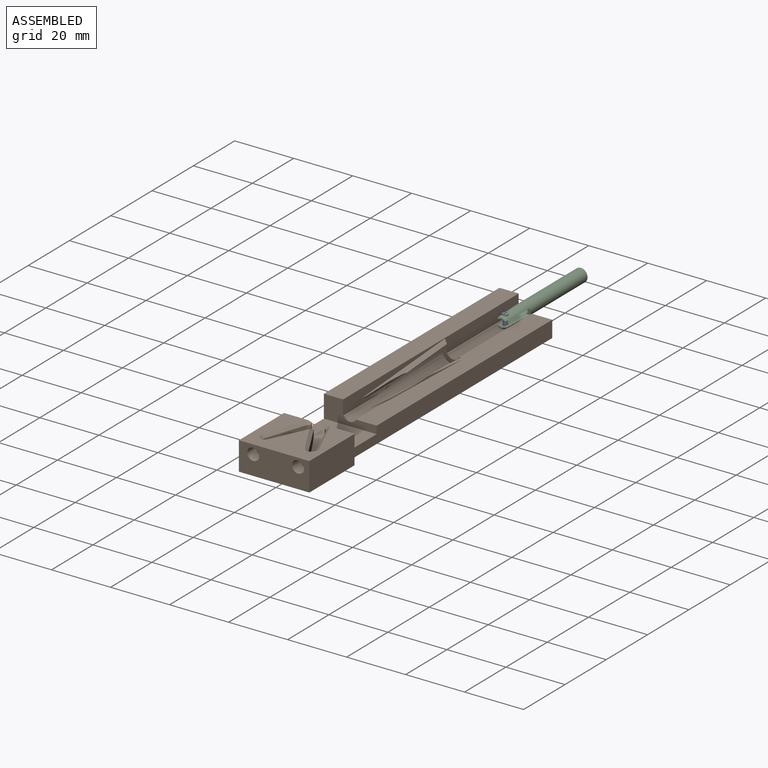
[diagram: assembled view]
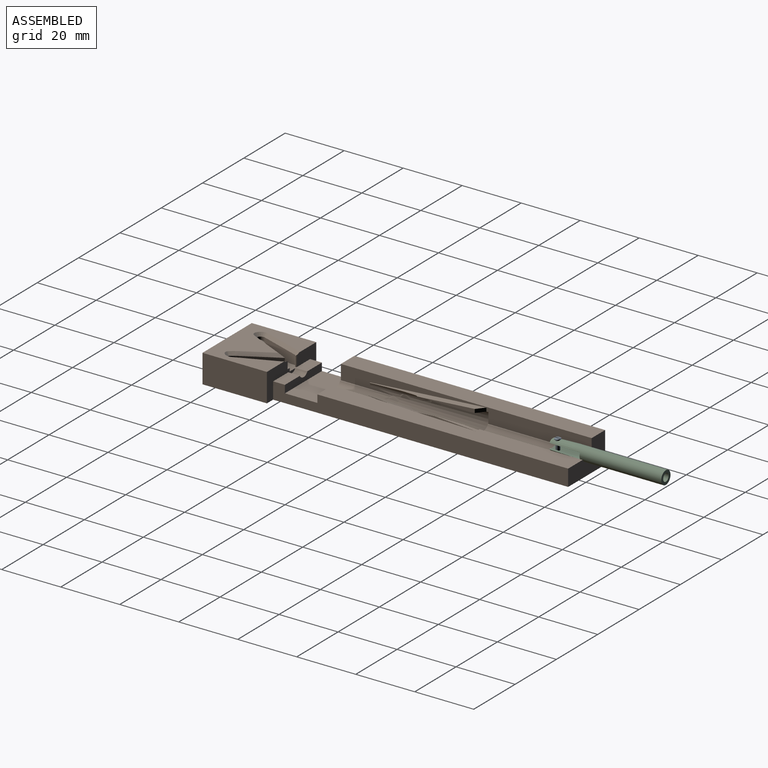
[diagram: assembled view, second angle]
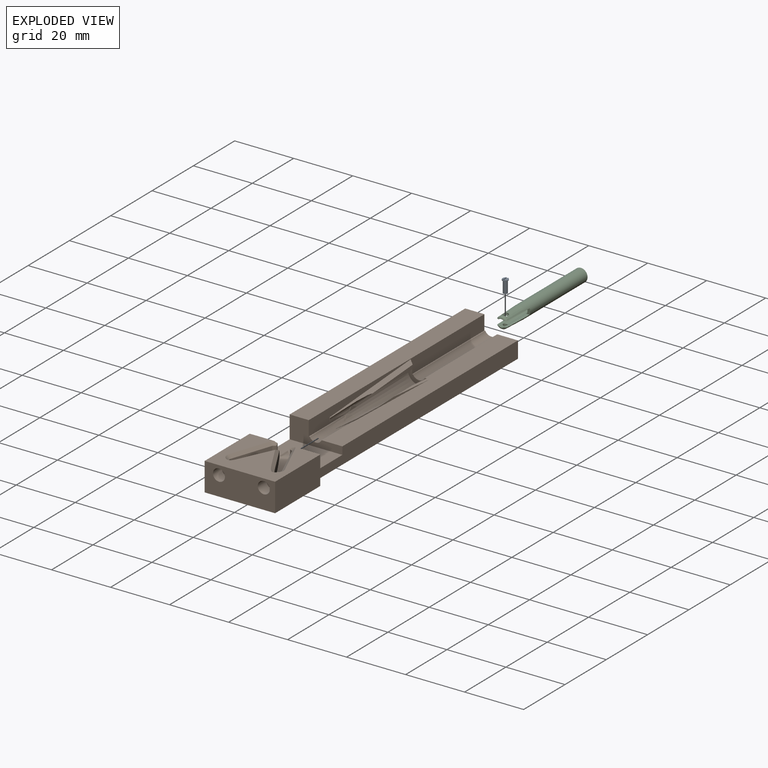
[diagram: exploded view]
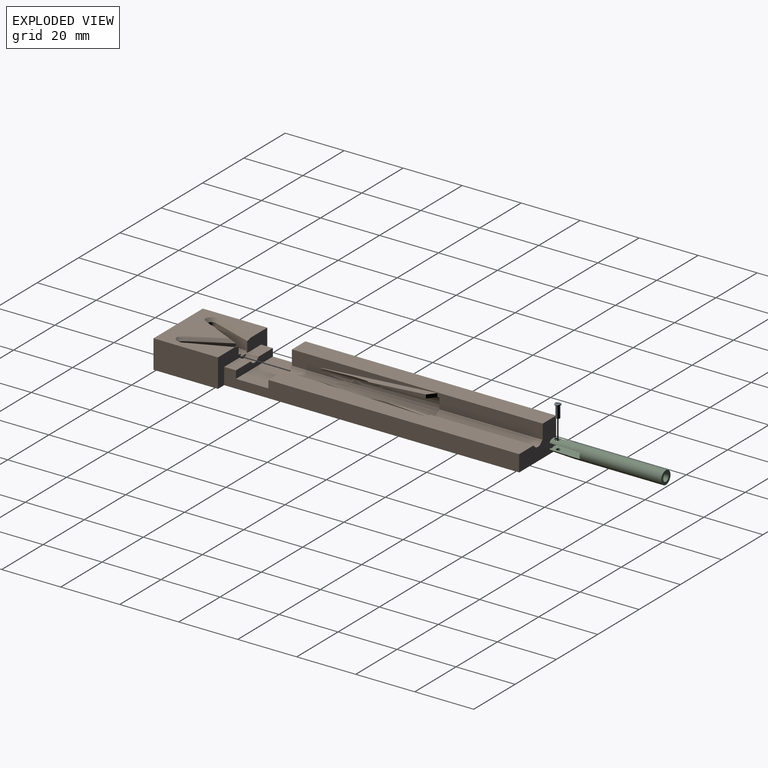
[diagram: exploded view, second angle]
ASSEMBLY  parts=3 mates=2
PART A: 9 faces, bbox 2x2x4.4 mm
  f0: cylinder r=1mm len=2mm, axis (0,0,-1), area 1.8mm2, adj f3,f4,f5,f6,f7,f8
  f1: cylinder r=0.7mm len=4.02mm, axis (0,0,1), area 17.7mm2, adj f2,f3
  f2: plane 1.4x1.4mm, normal (0,0,1), area 1.5mm2, adj f1
  f3: plane 2x2mm, normal (0,0,1), area 1.6mm2, adj f0,f1
  f4: cylinder r=4.5mm len=1.96mm, axis (0,1,0), area 1.2mm2, adj f0,f7
  f5: plane 1.96x0.25mm, normal (1,0,0), area 0.5mm2, adj f0,f6,f8
  f6: plane 2x0.4mm, normal (0,0,-1), area 0.8mm2, adj f0,f5,f7
  f7: plane 1.96x0.25mm, normal (-1,0,0), area 0.5mm2, adj f0,f4,f6
  f8: cylinder r=4.5mm len=1.96mm, axis (0,1,0), area 1.2mm2, adj f0,f5
PART B: 127 faces, bbox 24.4x122.4x11.1 mm
  f0: plane 6.37x6.36mm, normal (0,-1,0), area 14.2mm2, adj f1,f2,f4,f5,f113,f117,f120
  f1: plane 85.42x5.42mm, normal (1,0,0), area 292.5mm2, adj f0,f2,f3,f5,f109,f110,f111,f120
  f2: cone r=2.25mm half-angle=2.1deg, axis (0,1,0), area 331.6mm2, adj f0,f1,f3,f4,f112,f115,f116,f117
  f3: plane 18.01x0.34mm, normal (0,0,1), area 4.6mm2, adj f1,f2,f110,f112
  f4: plane 85.15x7.18mm, normal (0,0,1), area 575.4mm2, adj f0,f2,f107,f109,f110,f112,f113,f116
  f5: plane 35x0.33mm, normal (0,0,1), area 11.6mm2, adj f0,f1,f109,f113
  f6: plane 7.16x4mm, normal (0,0,1), area 28.3mm2, adj f9,f106,f108,f114,f119
  f7: plane 7.36x4mm, normal (0,0,1), area 29.1mm2, adj f8,f107,f114,f119
  f8: plane 14.2x10.14mm, normal (0,1,0), area 59.9mm2, adj f7,f10,f14,f44,f46,f47,f49,f86
  f9: plane 9.89x9.68mm, normal (0,1,0), area 54.7mm2, adj f6,f43,f45,f47,f64,f88,f108
  f10: plane 1.06x0.33mm, normal (-0.9,0.44,0), area 0.4mm2, adj f8,f11,f13,f14,f18,f19,f44,f55
  f11: plane 2.08x0.95mm, normal (-0.91,0.42,0), area 0.2mm2, adj f10,f14,f15,f16,f18,f23
  f12: bspline ~0.75x0.45mm, area 0mm2, adj f40,f42,f56
  f13: cone r=179.19mm half-angle=55deg, axis (-0.91,0.42,0), area 0mm2, adj f10,f15,f18,f19,f55
  f14: cylinder r=5.23mm len=3.77mm, axis (-0.91,-0.42,0), area 3.2mm2, adj f8,f10,f11,f16,f37,f49
  f15: cylinder r=177.1mm len=2.19mm, axis (-0.94,0.35,0), area 0mm2, adj f11,f13,f18
  f16: cylinder r=2mm len=3.29mm, axis (-0.91,-0.42,0), area 1mm2, adj f11,f14,f20,f24,f36,f37
  f17: bspline ~0.33x0.28mm, area 0mm2, adj f39,f40,f42,f57
  f18: cylinder r=5.1mm len=0.18mm, axis (0.94,-0.35,0), area 0mm2, adj f10,f11,f13,f15,f19
  f19: plane 0.15x0.07mm, normal (0,0,-1), area 0mm2, adj f10,f13,f18
  f20: cylinder r=22.95mm len=15.51mm, axis (-0.91,-0.42,0), area 41.5mm2, adj f16,f25,f26,f27,f28,f33,f34,f36
  f21: cylinder r=3.59mm len=0.92mm, axis (0,0,-1), area 0.7mm2, adj f22,f60,f71,f87
  f22: plane 6.12x3.03mm, normal (-0.91,0.42,0), area 14.4mm2, adj f21,f23,f72,f87
  f23: plane 7.29x3.41mm, normal (-0.91,0.42,0), area 24.7mm2, adj f11,f22,f24,f42,f55,f56,f73,f87
  f24: plane 2.17x0.19mm, normal (0.87,0.49,0), area 0.5mm2, adj f16,f23,f25,f74
  f25: plane 10.87x6.05mm, normal (0.87,0.49,0), area 38.7mm2, adj f20,f24,f50,f75
  f26: cylinder r=0.16mm len=2.05mm, axis (0,0,-1), area 0.1mm2, adj f20,f52,f54,f79
  f27: cylinder r=2.51mm len=2.01mm, axis (0,0,1), area 0.3mm2, adj f20,f28,f52,f81
  f28: cylinder r=0.93mm len=2.02mm, axis (0,0,1), area 0.2mm2, adj f20,f27,f29,f53,f82
  f29: cylinder r=1.53mm len=1.95mm, axis (0,0,-1), area 2.9mm2, adj f28,f33,f83
  f30: cylinder r=0.15mm len=0.23mm, axis (0,0,1), area 0mm2, adj f31,f48,f62,f67
  f31: plane 0.22x0.02mm, normal (0.1,1,0), area 0mm2, adj f30,f32,f61,f68
  f32: plane 0.84x0.13mm, normal (0.07,1,0), area 0.1mm2, adj f31,f40,f59,f60,f61,f62,f69
  f33: cylinder r=1.53mm len=2.5mm, axis (0,0,1), area 1.6mm2, adj f20,f29,f34,f53,f84
  f34: plane 12.88x5.53mm, normal (-0.92,-0.39,0), area 42.9mm2, adj f20,f33,f37,f85
  f35: plane 13.27x4.49mm, normal (0.95,-0.32,0), area 43.7mm2, adj f38,f40,f48,f65
  f36: cylinder r=0.1mm len=0.01mm, axis (-0.38,0.87,0.31), area 0mm2, adj f16,f20
  f37: cylinder r=1.02mm len=2.16mm, axis (0,0,1), area 2.2mm2, adj f14,f16,f34,f49,f86
  f38: cylinder r=1.02mm len=3.15mm, axis (0,0,1), area 3.3mm2, adj f35,f40,f41,f42,f57,f64
  f39: bspline ~0.58x0.34mm, area 0mm2, adj f17,f40,f42
  f40: cylinder r=22.44mm len=15.71mm, axis (-0.94,0.35,0), area 35.8mm2, adj f12,f17,f32,f35,f38,f39,f42,f48
  f41: cylinder r=0.41mm len=3.59mm, axis (0,0,1), area 2.3mm2, adj f38,f42,f43,f44,f64
  f42: cylinder r=10.2mm len=3.97mm, axis (-0.94,0.35,0), area 5.4mm2, adj f12,f17,f23,f38,f39,f40,f41,f44
  f43: cylinder r=3.06mm len=3.76mm, axis (0,0,1), area 0.7mm2, adj f9,f41,f44,f64,f106
  f44: plane 3.43x1.5mm, normal (0,0,1), area 2.9mm2, adj f8,f10,f41,f42,f43,f55,f106
  f45: plane 21.85x9.64mm, normal (-1,0,0), area 210.7mm2, adj f9,f47,f88,f101
  f46: plane 21.85x9.64mm, normal (1,0,0), area 210.7mm2, adj f8,f47,f88,f101
  f47: plane 23.94x21.9mm, normal (0,0,1), area 361.6mm2, adj f8,f9,f45,f46,f64,f65,f66,f67
  f48: cylinder r=1.53mm len=1.87mm, axis (0,0,1), area 2.5mm2, adj f30,f35,f40,f58,f63,f66
  f49: cylinder r=0.41mm len=2.51mm, axis (0,0,1), area 1.5mm2, adj f8,f14,f37,f86
  f50: plane 2.92x1.15mm, normal (0.85,0.52,0), area 3.6mm2, adj f20,f25,f51,f76
  f51: plane 2.58x0.56mm, normal (0.82,0.58,0), area 1.7mm2, adj f20,f50,f54,f77
  f52: extruded ~2.03x0.19mm, area 0.4mm2, adj f20,f26,f27,f80
  f53: cylinder r=1.53mm len=1.42mm, axis (0,0,1), area 0.1mm2, adj f20,f28,f33
  f54: cylinder r=15.82mm len=2.38mm, axis (0,0,1), area 2.2mm2, adj f20,f26,f51,f78
  f55: plane 2.08x1.04mm, normal (-0.91,0.42,0), area 2.2mm2, adj f10,f13,f23,f42,f44
  f56: plane 0.77x0.46mm, normal (0.35,0.94,0), area 0.1mm2, adj f12,f23,f40,f42,f87
  f57: plane 0.19x0.07mm, normal (0.35,0.94,0), area 0mm2, adj f17,f38,f40,f42
  f58: cylinder r=0.15mm len=0.58mm, axis (0,0,1), area 0mm2, adj f40,f48,f59,f62,f63
  f59: plane 0.57x0.02mm, normal (0.1,1,0), area 0mm2, adj f32,f40,f58,f62
  f60: extruded ~0.84x0.18mm, area 0.1mm2, adj f21,f32,f70,f87
  f61: cylinder r=0.2mm len=0.16mm, axis (0.58,-0.04,0.81), area 0mm2, adj f31,f32,f62
  f62: cylinder r=0.21mm len=0.09mm, axis (0.59,-0.05,0.8), area 0mm2, adj f30,f32,f58,f59,f61,f63
  f63: bspline ~0.41x0.26mm, area 0mm2, adj f48,f58,f62
  f64: cone r=2.02mm half-angle=45deg, axis (0,0,1), area 2.5mm2, adj f9,f38,f41,f43,f47,f65
  f65: plane 13.58x5.43mm, normal (0.67,-0.23,0.71), area 19.8mm2, adj f35,f47,f64,f66
  f66: cone r=2.53mm half-angle=45deg, axis (0,0,1), area 4.1mm2, adj f47,f48,f65,f67
  f67: cone r=1.15mm half-angle=45deg, axis (0,0,1), area 0.4mm2, adj f30,f47,f66,f68
  f68: plane 1.02x1.02mm, normal (0.07,0.7,0.71), area 0mm2, adj f31,f47,f67,f69
  f69: plane 1.04x1.03mm, normal (0.05,0.71,0.71), area 0.2mm2, adj f32,f47,f68,f70
  f70: bspline ~1.06x1.02mm, area 0.9mm2, adj f47,f60,f69,f71
  f71: cone r=3.59mm half-angle=45deg, axis (0,0,1), area 1.4mm2, adj f21,f47,f70,f72
  f72: plane 6.5x3.73mm, normal (-0.64,0.3,0.71), area 9.5mm2, adj f22,f47,f71,f73
  f73: plane 7.66x3.44mm, normal (-0.64,0.3,0.71), area 9.9mm2, adj f23,f47,f72,f74,f75
  f74: plane 0.24x0.11mm, normal (0.62,0.34,0.71), area 0mm2, adj f24,f73,f75
  f75: plane 11.36x6.15mm, normal (0.62,0.34,0.71), area 16.5mm2, adj f25,f47,f73,f74,f76
  f76: plane 1.66x1.57mm, normal (0.6,0.37,0.71), area 1.9mm2, adj f47,f50,f75,f77
  f77: plane 1.25x1.15mm, normal (0.58,0.41,0.71), area 1mm2, adj f47,f51,f76,f78
  f78: bspline ~1.42x1.42mm, area 1.4mm2, adj f47,f54,f77,f79
  f79: cone r=0.16mm half-angle=45deg, axis (0,0,1), area 0.4mm2, adj f26,f47,f78,f80
  f80: bspline ~1.1x1.05mm, area 0.9mm2, adj f47,f52,f79,f81
  f81: cone r=3.51mm half-angle=45deg, axis (0,0,1), area 0.3mm2, adj f27,f47,f80,f82
  f82: cone r=1.93mm half-angle=45deg, axis (0,0,1), area 0.3mm2, adj f28,f47,f81,f83
  f83: cone r=1.53mm half-angle=45deg, axis (0,0,1), area 3mm2, adj f29,f47,f82,f84
  f84: cone r=2.53mm half-angle=45deg, axis (0,0,1), area 0.8mm2, adj f33,f47,f83,f85
  f85: plane 13.27x6.45mm, normal (-0.65,-0.28,0.71), area 19.8mm2, adj f34,f47,f84,f86
  f86: cone r=2.02mm half-angle=45deg, axis (0,0,1), area 2.2mm2, adj f8,f37,f47,f49,f85
  f87: bspline ~15.58x7.4mm, area 7.5mm2, adj f21,f22,f23,f40,f56,f60
  f88: plane 121.85x23.89mm, normal (0,0,-1), area 2232.7mm2, adj f8,f9,f45,f46,f89,f91,f93,f95
  f89: cylinder r=2.03mm len=4.2mm, axis (0,0,-1), area 53.7mm2, adj f88,f90
  f90: plane 4.07x4.07mm, normal (0,0,-1), area 13mm2, adj f89
  f91: cylinder r=2.03mm len=4.2mm, axis (0,0,-1), area 53.7mm2, adj f88,f92
  f92: plane 4.07x4.07mm, normal (0,0,-1), area 13mm2, adj f91
  f93: cylinder r=2.03mm len=4.2mm, axis (0,0,-1), area 53.7mm2, adj f88,f94
  f94: plane 4.07x4.07mm, normal (0,0,-1), area 13mm2, adj f93
  f95: cylinder r=2.03mm len=4.2mm, axis (0,0,-1), area 53.7mm2, adj f88,f96
  f96: plane 4.07x4.07mm, normal (0,0,-1), area 13mm2, adj f95
  f97: cylinder r=2.03mm len=4.2mm, axis (0,0,-1), area 53.7mm2, adj f88,f98
  f98: plane 4.07x4.07mm, normal (0,0,-1), area 13mm2, adj f97
  f99: cylinder r=2.03mm len=4.2mm, axis (0,0,-1), area 53.7mm2, adj f88,f100
  f100: plane 4.07x4.07mm, normal (0,0,-1), area 13mm2, adj f99
  f101: plane 23.89x9.64mm, normal (0,-1,0), area 204.3mm2, adj f45,f46,f47,f88,f102,f104
  f102: cylinder r=2.03mm len=4.2mm, axis (0,-1,0), area 53.7mm2, adj f101,f103
  f103: plane 4.07x4.07mm, normal (0,-1,0), area 13mm2, adj f102
  f104: cylinder r=2.03mm len=4.2mm, axis (0,-1,0), area 53.7mm2, adj f101,f105
  f105: plane 4.07x4.07mm, normal (0,-1,0), area 13mm2, adj f104
  f106: plane 0.75x0.04mm, normal (0,-1,0), area 0mm2, adj f6,f43,f44,f114
  f107: plane 100x5.6mm, normal (1,0,0), area 531.4mm2, adj f4,f7,f8,f88,f109,f110,f118,f119
  f108: plane 100x10.6mm, normal (-1,0,0), area 956.4mm2, adj f6,f9,f88,f109,f110,f111,f118,f119
  f109: plane 17.89x10.6mm, normal (0,1,0), area 129.1mm2, adj f1,f4,f5,f88,f107,f108,f111,f113
  f110: plane 17.89x7.6mm, normal (0,-1,0), area 75.4mm2, adj f1,f3,f4,f107,f108,f111,f112,f118
  f111: plane 85x6.5mm, normal (0,0,1), area 552.5mm2, adj f1,f108,f109,f110
  f112: cylinder r=2.25mm len=10mm, axis (0,1,0), area 50mm2, adj f2,f3,f4,f110
  f113: cylinder r=2.25mm len=35mm, axis (0,1,0), area 174.8mm2, adj f0,f4,f5,f109
  f114: cone r=2.25mm half-angle=1.9deg, axis (0,1,0), area 17.1mm2, adj f6,f7,f8,f106,f119
  f115: plane 1.01x0.58mm, normal (0,-1,0), area 0mm2, adj f2,f116,f117,f125
  f116: plane 39.92x4.2mm, normal (0.99,-0.1,0), area 28mm2, adj f2,f4,f115,f125
  f117: plane 39.92x4.2mm, normal (-0.99,0.1,0), area 35.5mm2, adj f0,f2,f4,f115,f125
  f118: plane 17.89x11mm, normal (0,0,1), area 196.8mm2, adj f107,f108,f110,f119
  f119: plane 17.89x2.6mm, normal (0,1,0), area 43.6mm2, adj f6,f7,f107,f108,f114,f118
  f120: plane 40x2.87mm, normal (0,0.07,-1), area 38.9mm2, adj f0,f1,f2,f122,f123,f124,f126
  f121: plane 39.3x2.82mm, normal (0,-0.07,1), area 63.5mm2, adj f1,f122,f123,f124,f126
  f122: plane 1.25x0.33mm, normal (0,-1,0), area 0.2mm2, adj f1,f120,f121,f124
  f123: plane 19.56x1.4mm, normal (1,0,0), area 13.5mm2, adj f120,f121,f124,f126
  f124: cylinder r=2.25mm len=34.83mm, axis (0,1,0), area 54mm2, adj f120,f121,f122,f123
  f125: cylinder r=2.25mm len=34.27mm, axis (0,1,0), area 34.8mm2, adj f4,f115,f116,f117
  f126: plane 2.3x2.3mm, normal (0.71,0.71,0), area 4.1mm2, adj f1,f120,f121,f123
PART C: 17 faces, bbox 4.5x38.6x4.5 mm
  f0: cylinder r=1mm len=2mm, axis (0,0,1), area 2.1mm2, adj f7,f13
  f1: plane 10.91x1.2mm, normal (0,0,1), area 11.4mm2, adj f5,f7,f9,f11,f16
  f2: plane 10.91x1.2mm, normal (0,0,1), area 11.4mm2, adj f5,f7,f8,f11,f16
  f3: plane 10.91x1.2mm, normal (0,0,-1), area 11.4mm2, adj f4,f5,f9,f11,f15
  f4: cone r=2.25mm half-angle=1.9deg, axis (0,-1,0), area 34.4mm2, adj f3,f5,f10,f14,f15
  f5: cylinder r=2.25mm len=30mm, axis (0,1,0), area 414.6mm2, adj f1,f2,f3,f4,f6,f7,f8,f9
  f6: plane 4.5x4.5mm, normal (0,-1,0), area 10.6mm2, adj f5,f11
  f7: cone r=2.25mm half-angle=1.9deg, axis (0,-1,0), area 32.7mm2, adj f0,f1,f2,f5,f16
  f8: plane 2x1.42mm, normal (0,1,0), area 2mm2, adj f2,f5,f10,f11
  f9: plane 2x1.42mm, normal (0,1,0), area 2mm2, adj f1,f3,f5,f11
  f10: plane 10.91x1.2mm, normal (0,0,-1), area 11.4mm2, adj f4,f5,f8,f11,f15
  f11: cylinder r=1.3mm len=38.61mm, axis (0,1,0), area 262.4mm2, adj f1,f2,f3,f6,f8,f9,f10,f12
  f12: cylinder r=0.7mm len=1.4mm, axis (0,0,1), area 1.6mm2, adj f11,f13
  f13: plane 2x2mm, normal (0,0,-1), area 1.6mm2, adj f0,f12
  f14: cylinder r=0.7mm len=1.4mm, axis (0,0,-1), area 3.4mm2, adj f4,f11
  f15: torus R=1.23mm, axis (0,1,0), area 3.6mm2, adj f3,f4,f10,f11
  f16: torus R=1.23mm, axis (0,1,0), area 3.6mm2, adj f1,f2,f7,f11
PLACE A rot(axis=(-1,0,0),180deg) t=(-19.72,97.3,2.21)mm
PLACE B t=(-19.72,6,-4.27)mm fixed
PLACE C rot(axis=(-1,0,0),180deg) t=(-19.72,97.3,2.36)mm
MATE fastened A.f1 <-> C.f0  axis (0,0,-1) through (-19.72,90.69,0.31)mm
MATE slider C.f5 <-> B.f114  axis (0,-1,0) through (-19.72,112.3,2.36)mm
